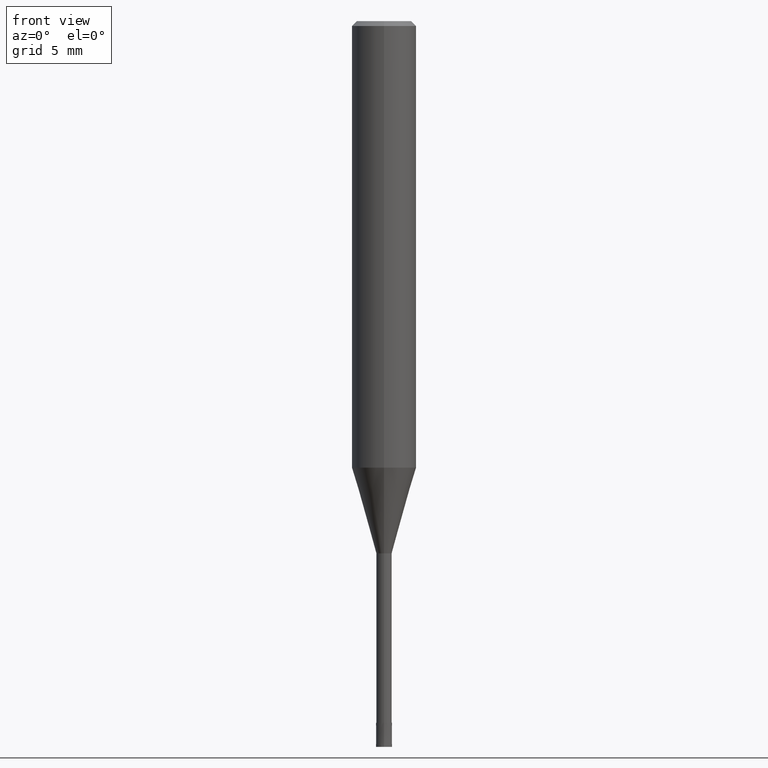
[diagram: clean part render]
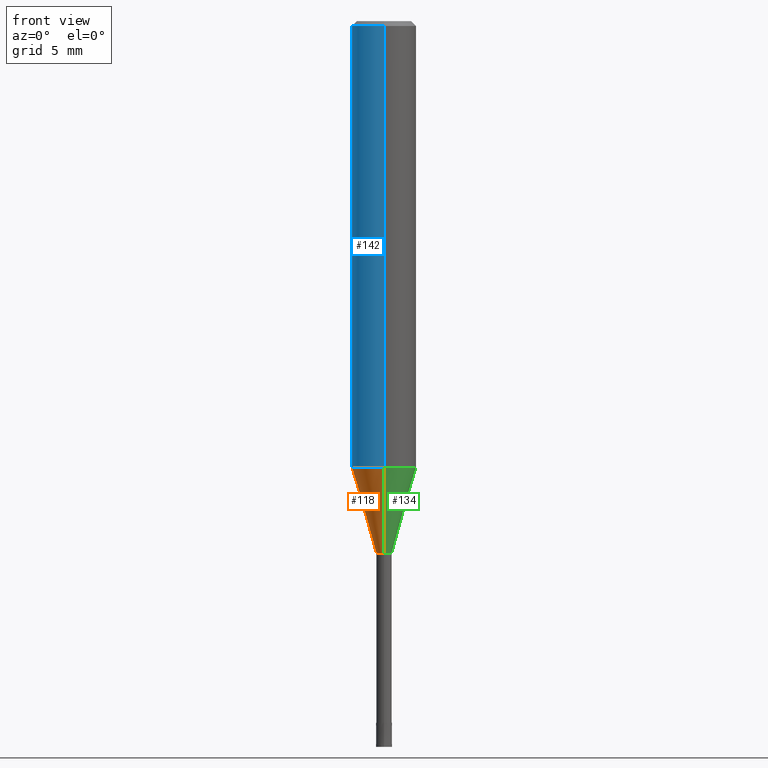
[diagram: same view with three faces highlighted in distinct colors, each labeled with its STEP entity id]
A machine part, front view with three faces highlighted in distinct colors.
Their STEP definitions:

[orange] entity #118 — the highlighted conical surface has half-angle 16.001 deg.
#108=VERTEX_POINT('',#248);
#118=ADVANCED_FACE('',(#259),#260,.T.);
#120=VERTEX_POINT('',#262);
#168=EDGE_CURVE('',#108,#120,#317,.T.);
#174=VERTEX_POINT('',#325);
#186=VERTEX_POINT('',#339);
#192=EDGE_CURVE('',#108,#186,#345,.T.);
#194=EDGE_CURVE('',#120,#174,#347,.T.);
#200=EDGE_CURVE('',#174,#186,#353,.T.);
#248=CARTESIAN_POINT('',(5.81626787747938E-017,-0.47495,-33.0));
#259=FACE_OUTER_BOUND('',#408,.T.);
#260=CONICAL_SURFACE('',#409,1.23745,0.279267977304115);
#262=CARTESIAN_POINT('',(2.44915147732706E-016,-1.99995,-27.682));
#317=LINE('',#479,#480);
#325=CARTESIAN_POINT('',(0.0,1.99995,-27.682));
#339=CARTESIAN_POINT('',(0.0,0.47495,-33.0));
#345=CIRCLE('',#514,0.47495);
#347=CIRCLE('',#517,1.99995);
#353=LINE('',#526,#527);
#408=EDGE_LOOP('',(#586,#587,#588,#589));
#409=AXIS2_PLACEMENT_3D('',#590,#591,#592);
#479=CARTESIAN_POINT('',(1.5153891325375E-016,-1.23745,-30.341));
#480=VECTOR('',#668,1.0);
#514=AXIS2_PLACEMENT_3D('',#701,#702,#703);
#517=AXIS2_PLACEMENT_3D('',#704,#705,#706);
#526=CARTESIAN_POINT('',(-1.5153891325375E-016,1.23745,-30.341));
#527=VECTOR('',#708,1.0);
#586=ORIENTED_EDGE('',*,*,#200,.T.);
#587=ORIENTED_EDGE('',*,*,#192,.F.);
#588=ORIENTED_EDGE('',*,*,#168,.T.);
#589=ORIENTED_EDGE('',*,*,#194,.T.);
#590=CARTESIAN_POINT('',(0.0,0.0,-30.341));
#591=DIRECTION('',(-0.0,-0.0,1.0));
#592=DIRECTION('',(0.0,1.0,0.0));
#668=DIRECTION('',(3.37565264353533E-017,-0.275652060190515,0.961257479405349));
#701=CARTESIAN_POINT('',(0.0,0.0,-33.0));
#702=DIRECTION('',(0.0,0.0,-1.0));
#703=DIRECTION('',(0.0,1.0,0.0));
#704=CARTESIAN_POINT('',(0.0,0.0,-27.682));
#705=DIRECTION('',(0.0,0.0,-1.0));
#706=DIRECTION('',(0.0,1.0,0.0));
#708=DIRECTION('',(3.37565264353533E-017,-0.275652060190515,-0.961257479405349));

[blue] entity #142 — the highlighted cylindrical surface (edge-blend (fillet) strip) has radius 2 mm, axis along (-0, -0, 1).
#122=VERTEX_POINT('',#264);
#142=ADVANCED_FACE('',(#289),#290,.T.);
#146=VERTEX_POINT('',#294);
#148=EDGE_CURVE('',#146,#122,#296,.T.);
#152=EDGE_CURVE('',#146,#198,#300,.T.);
#180=EDGE_CURVE('',#122,#188,#333,.T.);
#188=VERTEX_POINT('',#341);
#190=EDGE_CURVE('',#188,#198,#343,.T.);
#198=VERTEX_POINT('',#351);
#264=CARTESIAN_POINT('',(2.44921270764475E-016,-2.0,-0.300000000000001));
#289=FACE_OUTER_BOUND('',#441,.T.);
#290=CYLINDRICAL_SURFACE('',#442,2.0);
#294=CARTESIAN_POINT('',(2.44921270764475E-016,-2.0,-27.682));
#296=LINE('',#449,#450);
#300=CIRCLE('',#455,2.0);
#333=CIRCLE('',#498,2.0);
#341=CARTESIAN_POINT('',(0.0,2.0,-0.300000000000001));
#343=LINE('',#510,#511);
#351=CARTESIAN_POINT('',(0.0,2.0,-27.682));
#441=EDGE_LOOP('',(#636,#637,#638,#639));
#442=AXIS2_PLACEMENT_3D('',#640,#641,#642);
#449=CARTESIAN_POINT('',(2.44921270764475E-016,-2.0,-13.991));
#450=VECTOR('',#643,1.0);
#455=AXIS2_PLACEMENT_3D('',#644,#645,#646);
#498=AXIS2_PLACEMENT_3D('',#694,#695,#696);
#510=CARTESIAN_POINT('',(-2.44921270764475E-016,2.0,-13.991));
#511=VECTOR('',#700,1.0);
#636=ORIENTED_EDGE('',*,*,#190,.T.);
#637=ORIENTED_EDGE('',*,*,#152,.F.);
#638=ORIENTED_EDGE('',*,*,#148,.T.);
#639=ORIENTED_EDGE('',*,*,#180,.T.);
#640=CARTESIAN_POINT('',(0.0,0.0,-13.991));
#641=DIRECTION('',(-0.0,-0.0,1.0));
#642=DIRECTION('',(0.0,1.0,0.0));
#643=DIRECTION('',(-0.0,-0.0,1.0));
#644=CARTESIAN_POINT('',(0.0,0.0,-27.682));
#645=DIRECTION('',(0.0,0.0,-1.0));
#646=DIRECTION('',(0.0,1.0,0.0));
#694=CARTESIAN_POINT('',(0.0,0.0,-0.300000000000001));
#695=DIRECTION('',(0.0,0.0,-1.0));
#696=DIRECTION('',(0.0,1.0,0.0));
#700=DIRECTION('',(0.0,0.0,-1.0));

[green] entity #134 — the highlighted conical surface has half-angle 16.001 deg.
#100=EDGE_CURVE('',#186,#108,#239,.T.);
#104=EDGE_CURVE('',#174,#120,#243,.T.);
#108=VERTEX_POINT('',#248);
#120=VERTEX_POINT('',#262);
#134=ADVANCED_FACE('',(#277),#278,.T.);
#168=EDGE_CURVE('',#108,#120,#317,.T.);
#174=VERTEX_POINT('',#325);
#186=VERTEX_POINT('',#339);
#200=EDGE_CURVE('',#174,#186,#353,.T.);
#239=CIRCLE('',#385,0.47495);
#243=CIRCLE('',#389,1.99995);
#248=CARTESIAN_POINT('',(5.81626787747938E-017,-0.47495,-33.0));
#262=CARTESIAN_POINT('',(2.44915147732706E-016,-1.99995,-27.682));
#277=FACE_OUTER_BOUND('',#429,.T.);
#278=CONICAL_SURFACE('',#430,1.23745,0.279267977304115);
#317=LINE('',#479,#480);
#325=CARTESIAN_POINT('',(0.0,1.99995,-27.682));
#339=CARTESIAN_POINT('',(0.0,0.47495,-33.0));
#353=LINE('',#526,#527);
#385=AXIS2_PLACEMENT_3D('',#560,#561,#562);
#389=AXIS2_PLACEMENT_3D('',#564,#565,#566);
#429=EDGE_LOOP('',(#604,#605,#606,#607));
#430=AXIS2_PLACEMENT_3D('',#608,#609,#610);
#479=CARTESIAN_POINT('',(1.5153891325375E-016,-1.23745,-30.341));
#480=VECTOR('',#668,1.0);
#526=CARTESIAN_POINT('',(-1.5153891325375E-016,1.23745,-30.341));
#527=VECTOR('',#708,1.0);
#560=CARTESIAN_POINT('',(0.0,0.0,-33.0));
#561=DIRECTION('',(0.0,0.0,-1.0));
#562=DIRECTION('',(0.0,1.0,0.0));
#564=CARTESIAN_POINT('',(0.0,0.0,-27.682));
#565=DIRECTION('',(0.0,0.0,-1.0));
#566=DIRECTION('',(0.0,1.0,0.0));
#604=ORIENTED_EDGE('',*,*,#200,.F.);
#605=ORIENTED_EDGE('',*,*,#104,.T.);
#606=ORIENTED_EDGE('',*,*,#168,.F.);
#607=ORIENTED_EDGE('',*,*,#100,.F.);
#608=CARTESIAN_POINT('',(0.0,0.0,-30.341));
#609=DIRECTION('',(-0.0,-0.0,1.0));
#610=DIRECTION('',(0.0,1.0,0.0));
#668=DIRECTION('',(3.37565264353533E-017,-0.275652060190515,0.961257479405349));
#708=DIRECTION('',(3.37565264353533E-017,-0.275652060190515,-0.961257479405349));